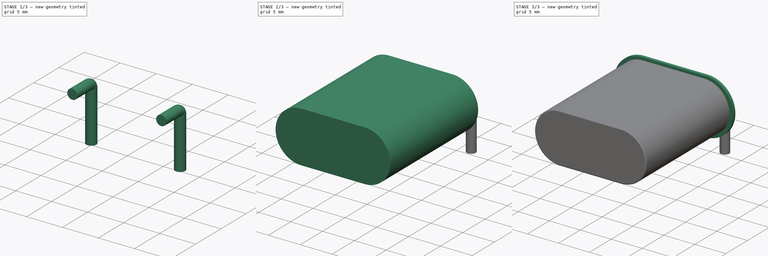
[diagram: build sequence overview — one tinted view per stage of 3, left to right]
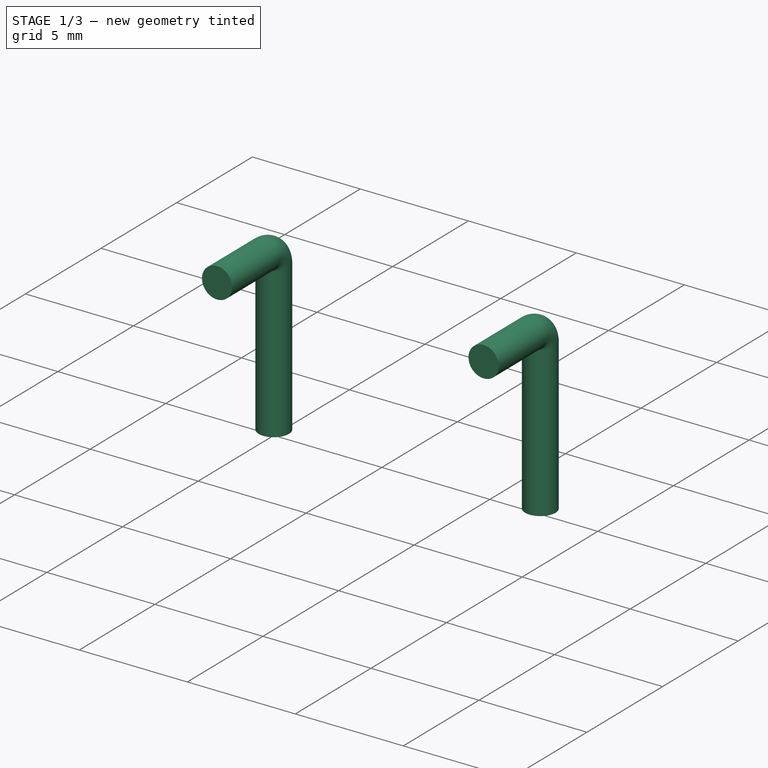
[diagram: stage 1 of 3 — iso view after this stage's code; geometry added in this stage tinted green]
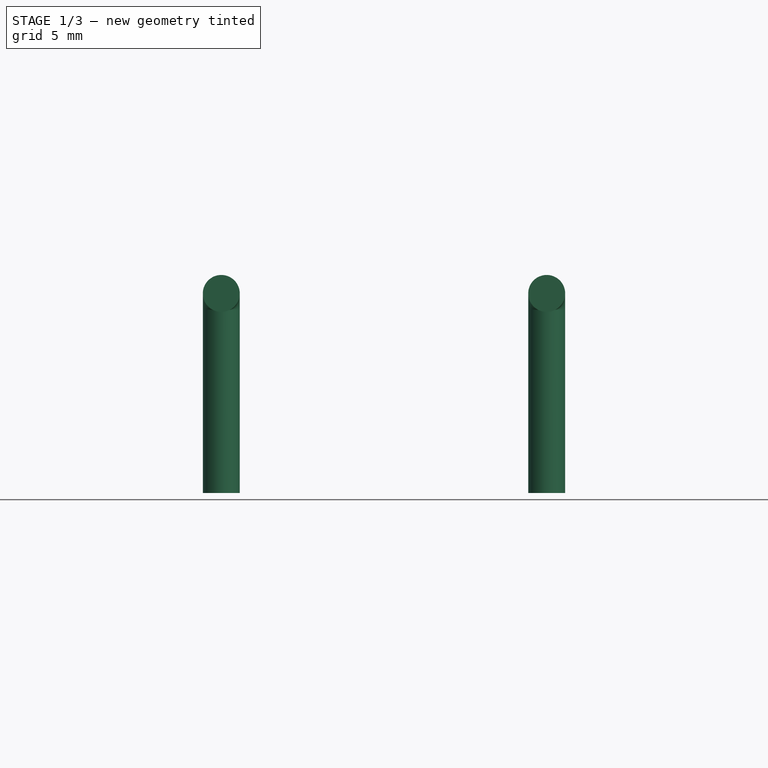
[diagram: stage 1 of 3 — front view after this stage's code; geometry added in this stage tinted green]
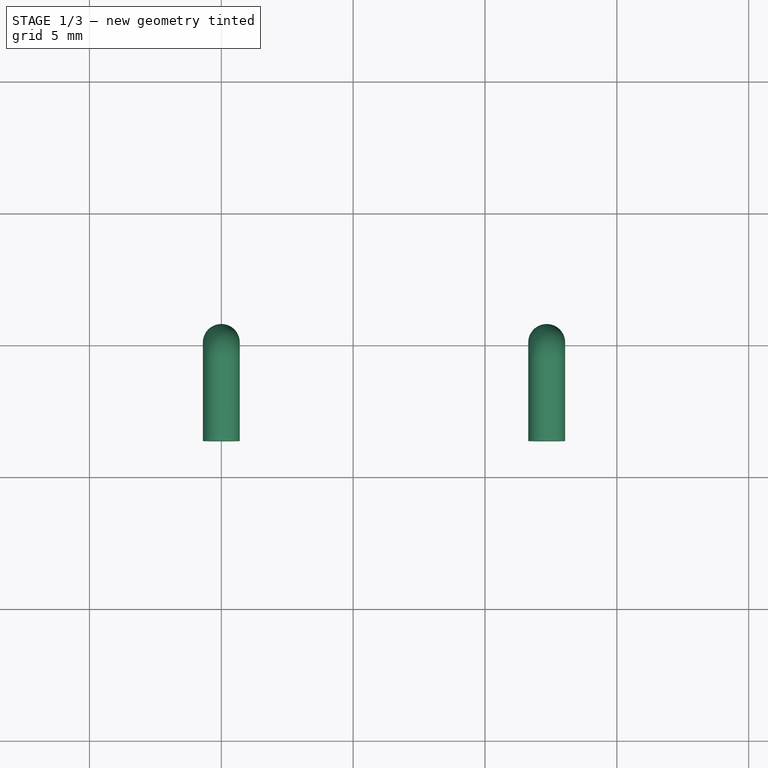
[diagram: stage 1 of 3 — top view after this stage's code; geometry added in this stage tinted green]
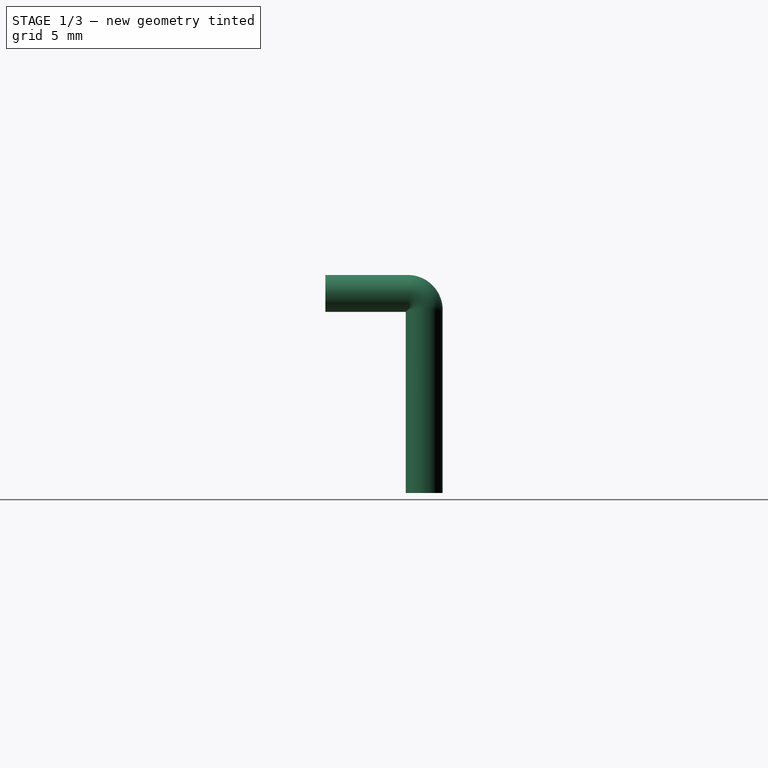
[diagram: stage 1 of 3 — right view after this stage's code; geometry added in this stage tinted green]
FCSTD DOCUMENT  (FreeCAD 0.16R6703 (Git))
Label: Crystal_HC33-U_Horizontal_1EP_style2
License: All rights reserved
LicenseURL: http://en.wikipedia.org/wiki/All_rights_reserved
objects: Sketcher::SketchObject×5, PartDesign::Pad×2, Part::Sweep×2, Spreadsheet::Sheet×1, PartDesign::Fillet×1
note: 12 computed .brp shape members not serialized (recipe doc carries the construction recipe); baked Part::Feature solids carry a one-line shape summary decoded from their .brp

FEATURE [Part::Sweep] Sweep
  Frenet = false
  Sections = -> [Sketch]
  Solid = true
  Spine = -> Sketch001 [Edge1,Edge2,Edge3]
  Transition = 1
FEATURE [Part::Sweep] Sweep001
  Frenet = false
  Sections = -> [Sketch002]
  Solid = true
  Spine = -> Sketch001 [Edge1,Edge2,Edge3]
  Transition = 1
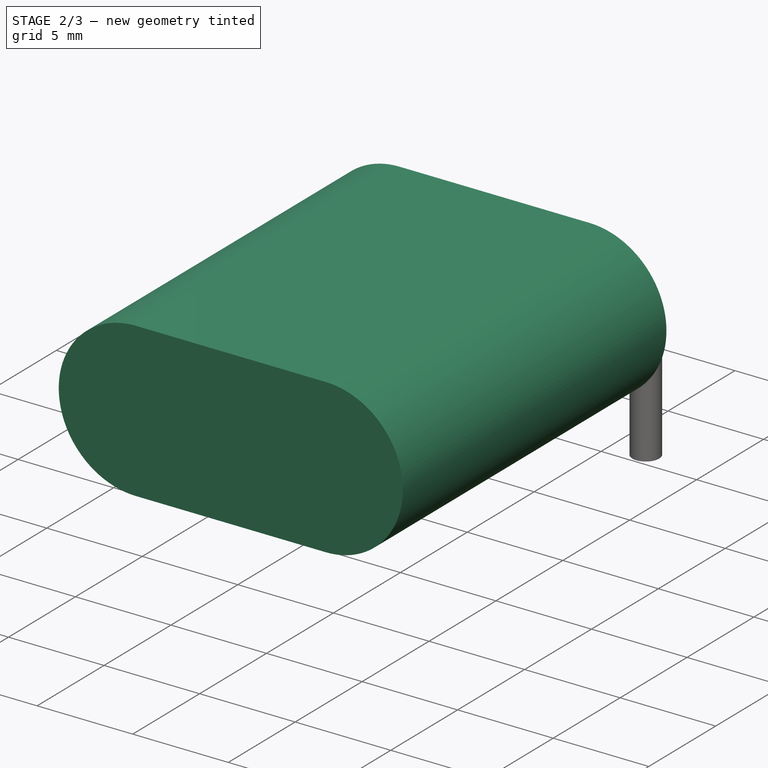
[diagram: stage 2 of 3 — iso view after this stage's code; geometry added in this stage tinted green]
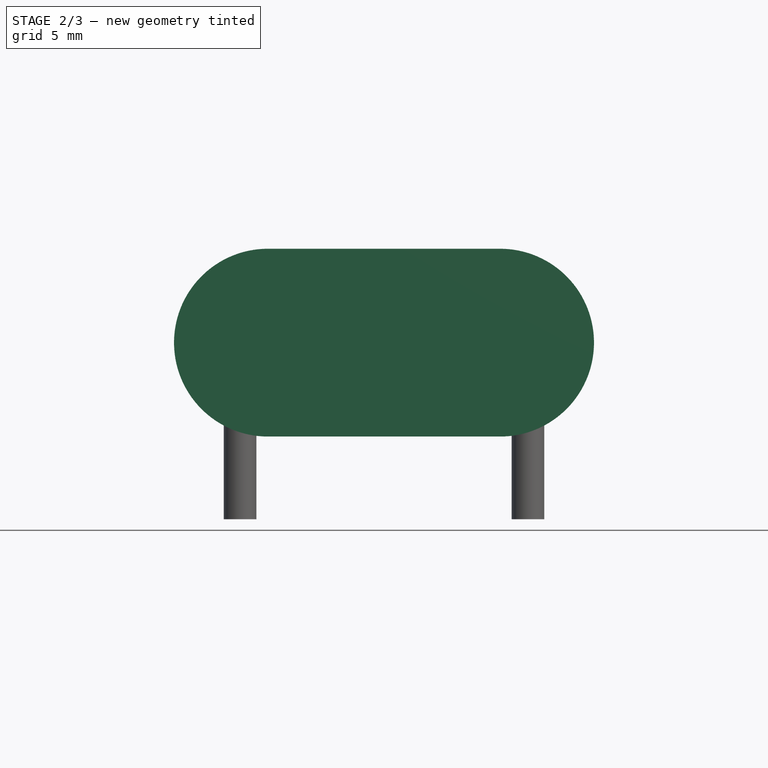
[diagram: stage 2 of 3 — front view after this stage's code; geometry added in this stage tinted green]
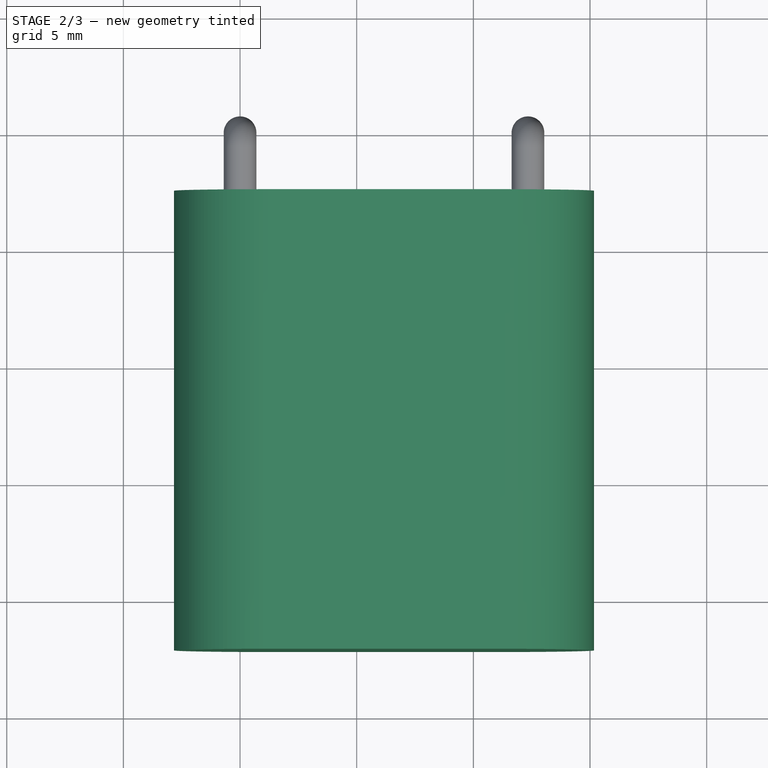
[diagram: stage 2 of 3 — top view after this stage's code; geometry added in this stage tinted green]
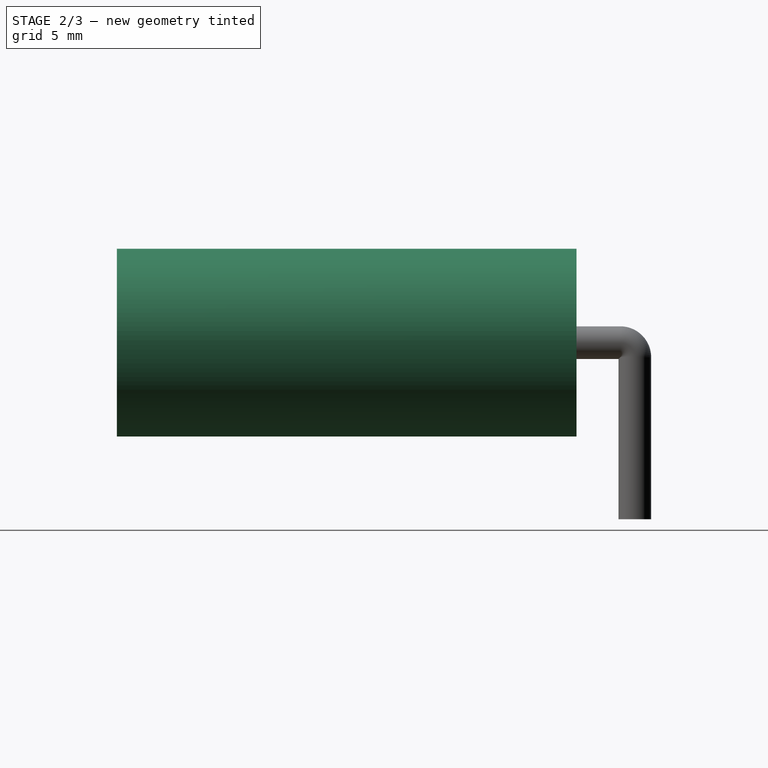
[diagram: stage 2 of 3 — right view after this stage's code; geometry added in this stage tinted green]
FEATURE [Sketcher::SketchObject] Sketch005
  Placement = pos=(0,-2.5,0) rot=(1,0,0;1.5708rad)
  expr: Constraints[6] = Spreadsheet.iheight3d
  expr: Constraints[13] = (Spreadsheet.iH - Spreadsheet.rm) / 2
  expr: Placement.Base.y = -Spreadsheet.pack_offset
  expr: Constraints[12] = Spreadsheet.iH
  expr: Constraints[7] = Spreadsheet.height3d / 2 + 0.1
  sketch-geometry (6):
    g0: ArcOfCircle CenterX=1.195 CenterY=4.57 CenterZ=0 NormalX=0 NormalY=0 NormalZ=1 Radius=4.025 StartAngle=1.5708 EndAngle=4.71239
    g1: ArcOfCircle CenterX=11.145 CenterY=4.57 CenterZ=0 NormalX=0 NormalY=0 NormalZ=1 Radius=4.025 StartAngle=4.71239 EndAngle=7.85398
    g2: LineSegment StartX=1.195 StartY=0.545 StartZ=0 EndX=11.145 EndY=0.545 EndZ=0
    g3: LineSegment StartX=1.195 StartY=8.595 StartZ=0 EndX=11.145 EndY=8.595 EndZ=0
    g4: GeomPoint [constr] X=-2.83 Y=4.57 Z=0
    g5: GeomPoint [constr] X=15.17 Y=4.57 Z=0
  constraints (14):
    c: Tangent(g0,g3) = 1.5708
    c: Tangent(g0,g2) = -1.5708
    c: Tangent(g2,g1) = -1.5708
    c: Tangent(g3,g1) = 1.5708
    c: Horizontal(g2)
    c: Equal(g0,g1)
    c: DistanceY(g1,g1) = 8.05
    c: DistanceY(g-1,g0) = 4.57
    c: PointOnObject(g4,g0)
    c: DistanceY(g4,g0) = 0
    c: PointOnObject(g5,g1)
    c: DistanceY(g5,g1) = 0
    c: DistanceX(g4,g5) = 18
    c: DistanceX(g4,g-1) = 2.83
FEATURE [PartDesign::Pad] Pad001
  Length = 19.7
  Length2 = 100
  Placement = pos=(0,-2.5,0) rot=(1,0,0;1.5708rad)
  Sketch = -> Sketch005
  Type = 0
  expr: Length = Spreadsheet.WW
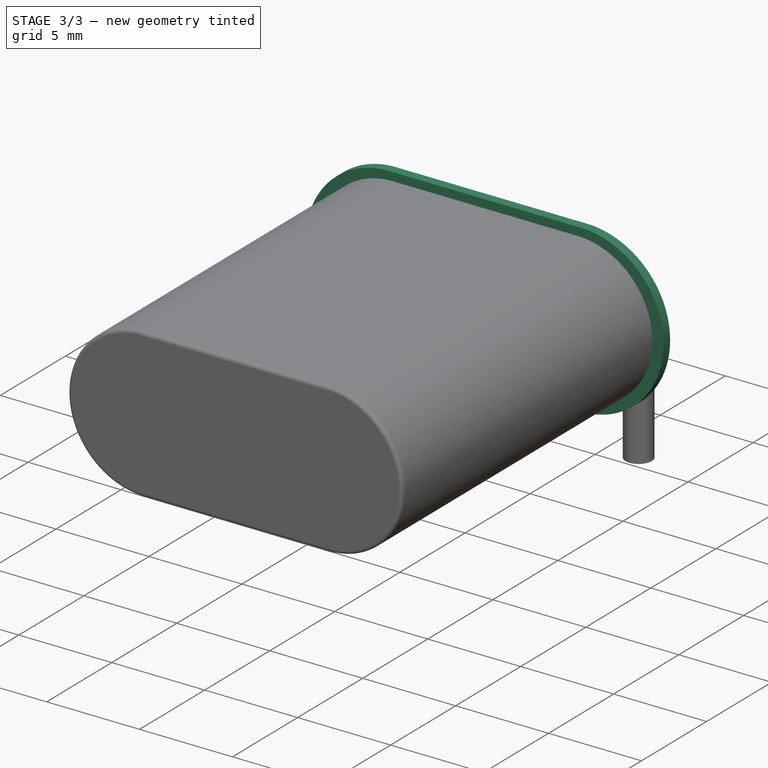
[diagram: stage 3 of 3 — iso view after this stage's code; geometry added in this stage tinted green]
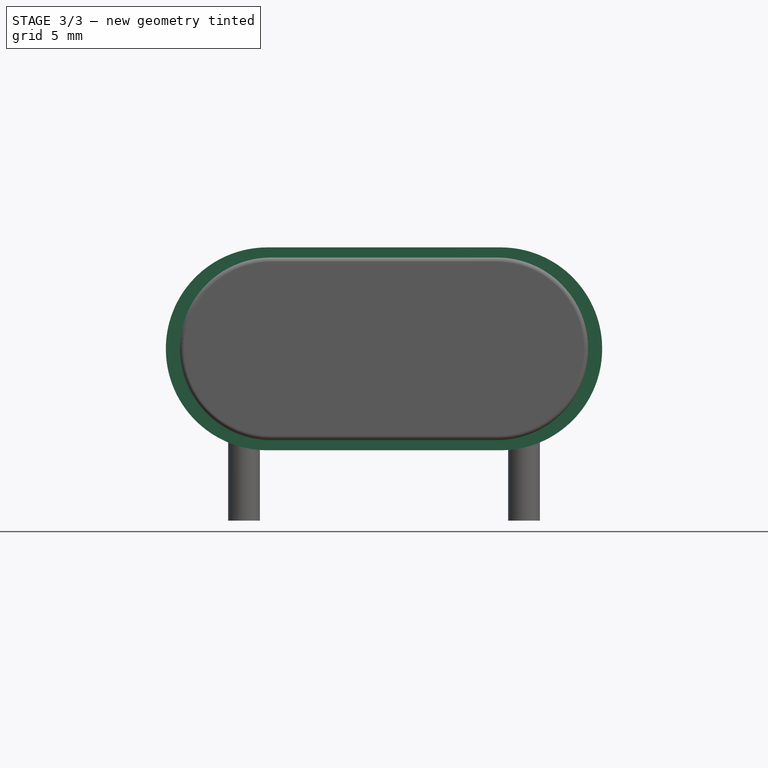
[diagram: stage 3 of 3 — front view after this stage's code; geometry added in this stage tinted green]
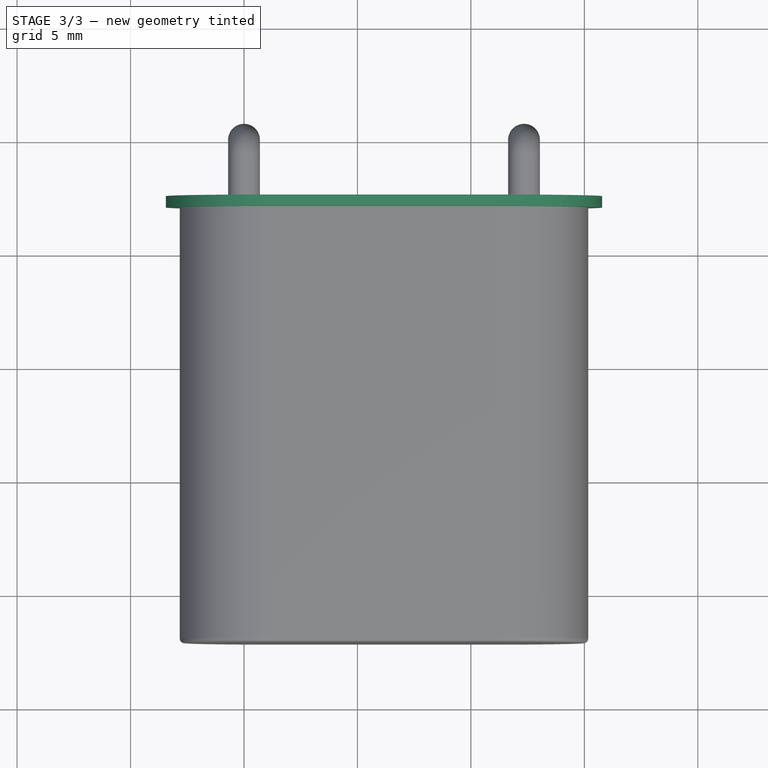
[diagram: stage 3 of 3 — top view after this stage's code; geometry added in this stage tinted green]
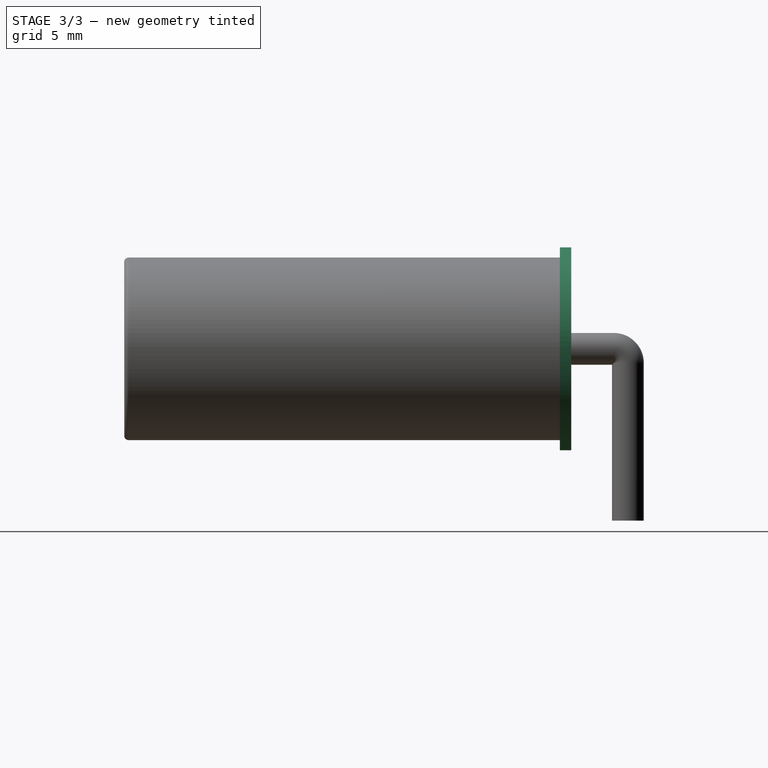
[diagram: stage 3 of 3 — right view after this stage's code; geometry added in this stage tinted green]
FEATURE [Spreadsheet::Sheet] Spreadsheet
  cells = A1=W; B1(WW)=19.7; C1(iW)=18; A2=H; B2(HH)=19.23; C2(iH)=18; A3=height3d; B3(height3d)=8.94; C3(iheight3d)=8.050000000000001; A4=RM; B4(rm)=12.34; A5=d_wire; B5(d_wire)=1.4; A6=pack_offset; B6(pack_offset)=2.5; A7=pack_rm; B7(pack_rm)=12.34
FEATURE [Sketcher::SketchObject] Sketch
  Placement = pos=(0,0,0.1) rot=(0,0,1;0rad)
  expr: Constraints[0] = Spreadsheet.d_wire / 2
  sketch-geometry (1):
    g0: Circle CenterX=0 CenterY=0 CenterZ=0 NormalX=0 NormalY=0 NormalZ=1 Radius=0.7
  constraints (1):
    c: Radius(g0) = 0.7
FEATURE [Sketcher::SketchObject] Sketch001
  Placement = pos=(0,0,0) rot=(0.57735,0.57735,0.57735;2.0944rad)
  expr: Constraints[5] = Spreadsheet.height3d / 2 + 0.1
  expr: Constraints[8] = Spreadsheet.pack_offset * 0.25
  expr: Constraints[4] = -Spreadsheet.pack_offset * 1.5
  sketch-geometry (3):
    g0: LineSegment StartX=0 StartY=-3 StartZ=0 EndX=0 EndY=3.945 EndZ=0
    g1: LineSegment StartX=-0.625 StartY=4.57 StartZ=0 EndX=-3.75 EndY=4.57 EndZ=0
    g2: ArcOfCircle CenterX=-0.625 CenterY=3.945 CenterZ=0 NormalX=0 NormalY=0 NormalZ=1 Radius=0.625 StartAngle=0 EndAngle=1.5708
  constraints (9):
    c: PointOnObject(g0,g-2)
    c: Vertical(g0)
    c: Horizontal(g1)
    c: DistanceY(g0,g-1) = 3
    c: DistanceX(g-1,g1) = -3.75
    c: DistanceY(g-1,g1) = 4.57
    c: Tangent(g1,g2) = -1.5708
    c: Tangent(g0,g2) = -1.5708
    c: Radius(g2) = 0.625
FEATURE [Sketcher::SketchObject] Sketch002
  Placement = pos=(0,0,0.1) rot=(0,0,1;0rad)
  expr: Constraints[2] = Spreadsheet.rm
  expr: Constraints[1] = Spreadsheet.d_wire / 2
  sketch-geometry (1):
    g0: Circle CenterX=12.34 CenterY=0 CenterZ=0 NormalX=0 NormalY=0 NormalZ=1 Radius=0.7
  constraints (3):
    c: PointOnObject(g0,g-1)
    c: Radius(g0) = 0.7
    c: DistanceX(g-1,g0) = 12.34
FEATURE [Sketcher::SketchObject] Sketch004
  Placement = pos=(0,-2.5,0) rot=(-1,0,0;4.71239rad)
  expr: Constraints[17] = (Spreadsheet.HH - Spreadsheet.rm) / 2
  expr: Constraints[6] = Spreadsheet.height3d
  expr: Constraints[7] = Spreadsheet.height3d / 2 + 0.1
  expr: Placement.Base.y = -Spreadsheet.pack_offset
  expr: Constraints[16] = Spreadsheet.HH
  sketch-geometry (8):
    g0: ArcOfCircle CenterX=1.025 CenterY=4.57 CenterZ=0 NormalX=0 NormalY=0 NormalZ=1 Radius=4.47 StartAngle=1.5708 EndAngle=4.71239
    g1: ArcOfCircle CenterX=11.315 CenterY=4.57 CenterZ=0 NormalX=0 NormalY=0 NormalZ=1 Radius=4.47 StartAngle=4.71239 EndAngle=7.85398
    g2: LineSegment StartX=1.025 StartY=0.1 StartZ=0 EndX=11.315 EndY=0.1 EndZ=0
    g3: LineSegment StartX=1.025 StartY=9.04 StartZ=0 EndX=11.315 EndY=9.04 EndZ=0
    g4: GeomPoint [constr] X=5.495 Y=4.57 Z=0
    g5: GeomPoint [constr] X=6.845 Y=4.57 Z=0
    g6: GeomPoint [constr] X=-3.445 Y=4.57 Z=0
    g7: GeomPoint [constr] X=15.785 Y=4.57 Z=0
  constraints (18):
    c: Tangent(g0,g3) = 1.5708
    c: Tangent(g0,g2) = -1.5708
    c: Tangent(g2,g1) = -1.5708
    c: Tangent(g3,g1) = 1.5708
    c: Horizontal(g2)
    c: Equal(g0,g1)
    c: DistanceY(g1,g1) = 8.94
    c: DistanceY(g-1,g0) = 4.57
    c: PointOnObject(g4,g0)
    c: DistanceY(g4,g0) = 0
    c: PointOnObject(g5,g1)
    c: DistanceY(g5,g1) = 0
    c: PointOnObject(g6,g0)
    c: PointOnObject(g7,g1)
    c: DistanceY(g1,g7) = 0
    c: DistanceY(g0,g6) = 0
    c: DistanceX(g6,g7) = 19.23
    c: DistanceX(g6,g-1) = 3.445
FEATURE [PartDesign::Pad] Pad
  Length = 0.5
  Length2 = 100
  Placement = pos=(0,-2.5,0) rot=(-1,0,0;4.71239rad)
  Sketch = -> Sketch004
  Type = 0
FEATURE [PartDesign::Fillet] Fillet
  Base = -> Pad001 [Edge7,Edge4,Edge12,Edge10]
  Placement = pos=(0,-2.5,0) rot=(1,0,0;1.5708rad)
  Radius = 0.2
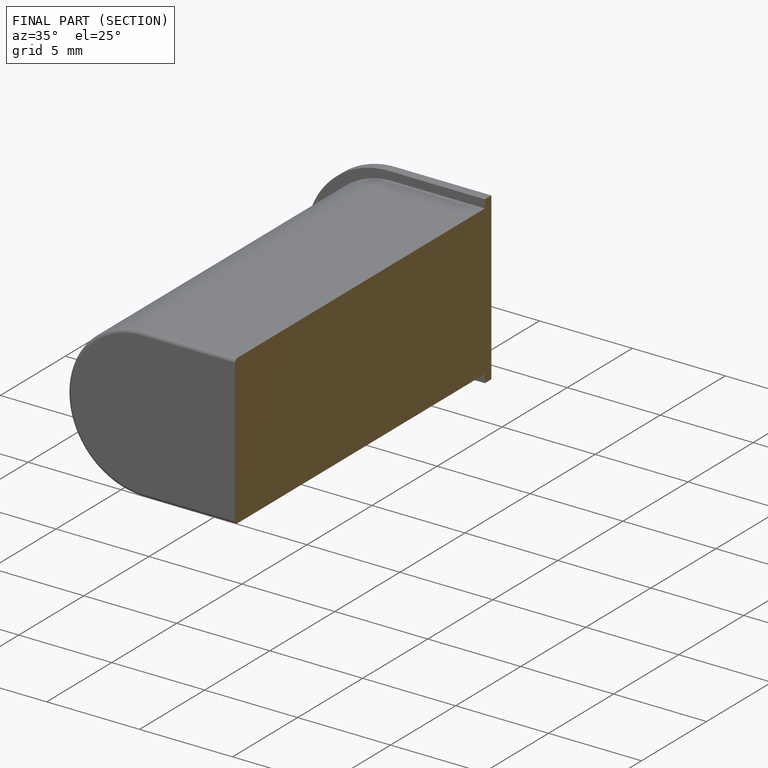
[diagram: finished part — half-section view (interior)]
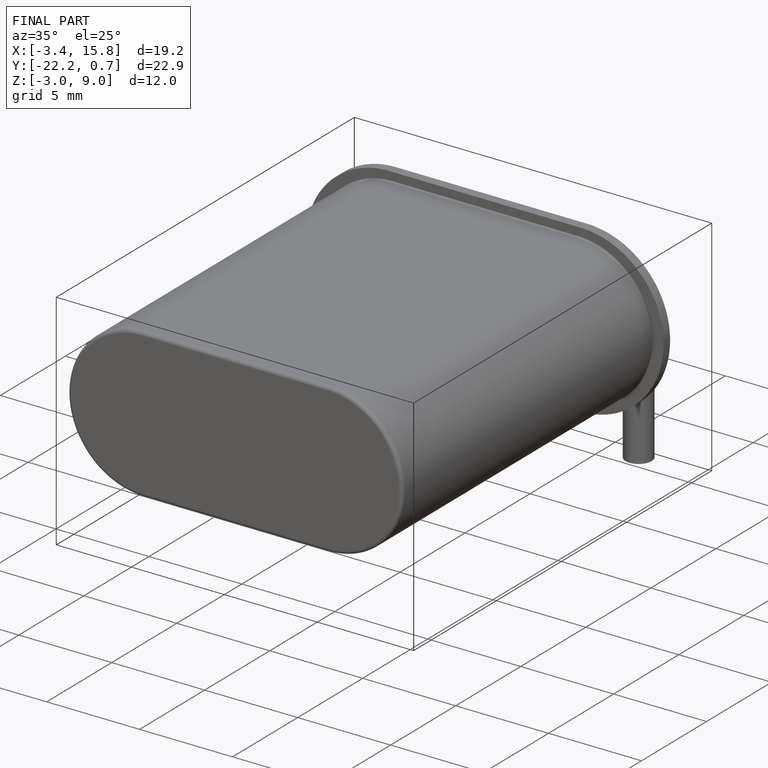
[diagram: finished part — iso view with bounding-box wireframe]
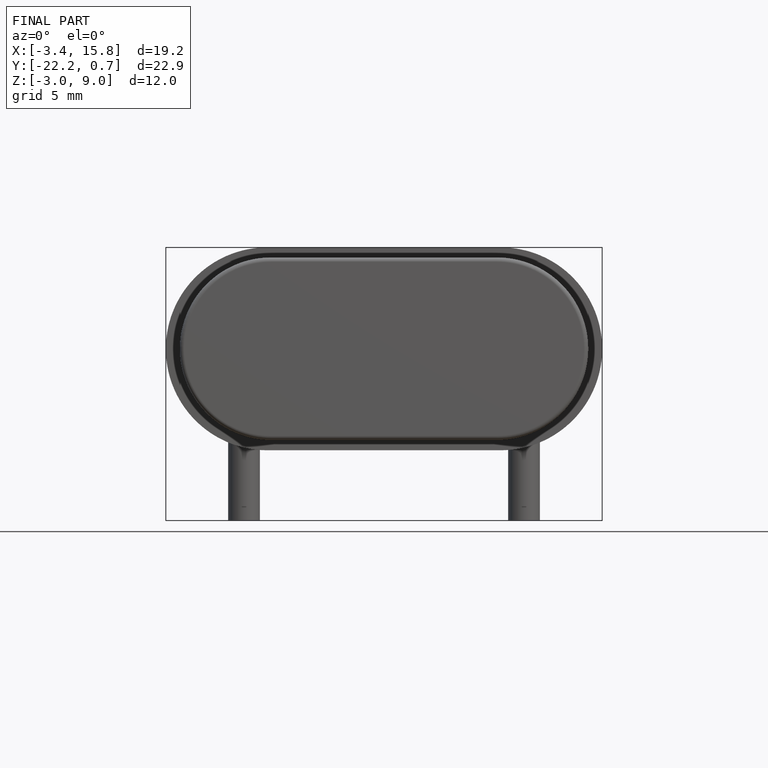
[diagram: finished part — front view with bounding-box wireframe]
